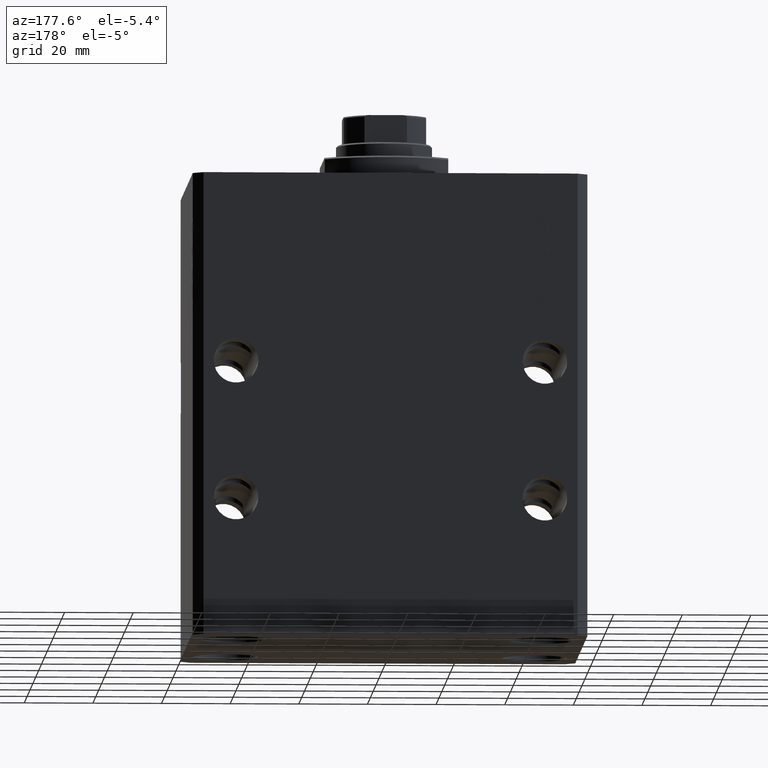
[diagram: clean part render]
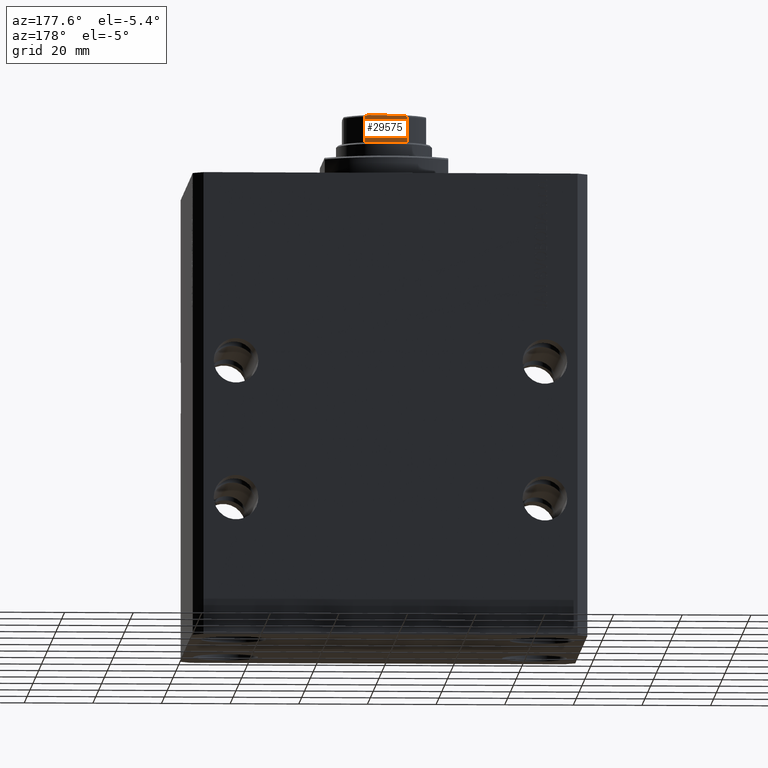
[diagram: same view with one face highlighted and labeled with its STEP entity id]
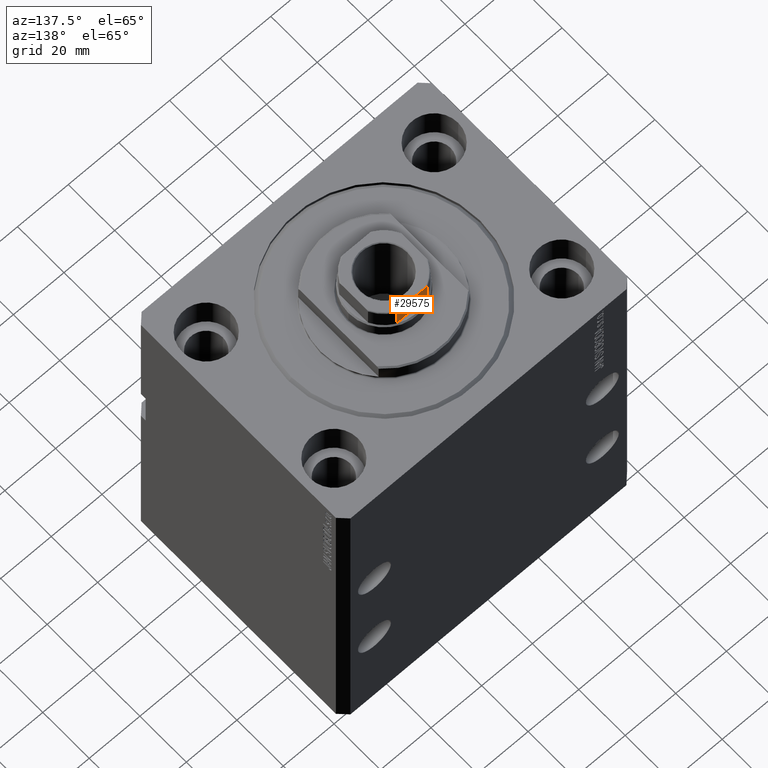
[diagram: same view with one face highlighted and labeled with its STEP entity id]
A machine part, auxiliary view. The second image highlights one B-rep face of the part: STEP entity #29575.
A second angle (auxiliary view) of the same face is appended — the face is thin or edge-on in the first view.
In plain terms, the highlighted planar face has unit normal (0, -1, 0).
Its self-contained STEP definition (entity closure, byte-faithful):
#655 = CARTESIAN_POINT ( 'NONE',  ( -5.000000000000001776, 11.99999999999999822, 137.0999999999999943 ) ) ;
#2593 = VERTEX_POINT ( 'NONE', #28420 ) ;
#3273 = PLANE ( 'NONE',  #22294 ) ;
#3506 = DIRECTION ( 'NONE',  ( 1.000000000000000000, 7.228014483236695816E-17, 0.000000000000000000 ) ) ;
#4063 = DIRECTION ( 'NONE',  ( -0.000000000000000000, -0.000000000000000000, 1.000000000000000000 ) ) ;
#4629 = CARTESIAN_POINT ( 'NONE',  ( -6.184658438426488658, 12.00000000000000000, 136.6589344020394208 ) ) ;
#4857 = CARTESIAN_POINT ( 'NONE',  ( 5.000000000000002665, 12.00000000000000000, 137.0999999999999943 ) ) ;
#5096 = CARTESIAN_POINT ( 'NONE',  ( 6.184658438426492211, 11.99999999999999467, 136.6589821493407158 ) ) ;
#5327 = CARTESIAN_POINT ( 'NONE',  ( 5.459934723612540175, 12.00000000000000000, 137.0794964115812604 ) ) ;
#7032 = DIRECTION ( 'NONE',  ( 7.228014483236695816E-17, -1.000000000000000000, 0.000000000000000000 ) ) ;
#7474 = CARTESIAN_POINT ( 'NONE',  ( -5.230795946637844196, 11.99999999999999467, 137.0999999999999659 ) ) ;
#8160 = CARTESIAN_POINT ( 'NONE',  ( -5.900889097622411761, 12.00000000000000000, 136.9429613869932325 ) ) ;
#8161 = CARTESIAN_POINT ( 'NONE',  ( 5.903192932991098374, 12.00000000000000355, 136.9415152347680475 ) ) ;
#11458 = CARTESIAN_POINT ( 'NONE',  ( -6.046414714222235531, 12.00000000000000000, 136.8457872300292877 ) ) ;
#11920 = CARTESIAN_POINT ( 'NONE',  ( 6.160856115322536297, 11.99999999999999645, 136.7149782197478771 ) ) ;
#13399 = EDGE_CURVE ( 'NONE', #26644, #35152, #22680, .T. ) ;
#14889 = CARTESIAN_POINT ( 'NONE',  ( 6.184658438426492211, 12.00000000000000178, 129.0999999999999659 ) ) ;
#16113 = VECTOR ( 'NONE', #4063, 1000.000000000000000 ) ;
#16913 = EDGE_CURVE ( 'NONE', #25042, #31785, #46231, .T. ) ;
#17023 = CARTESIAN_POINT ( 'NONE',  ( -6.184658438426490434, 12.00000000000000000, -0.001000000000001000089 ) ) ;
#17931 = CARTESIAN_POINT ( 'NONE',  ( 6.184658438426490434, 11.99999999999999822, -0.001000000000001000089 ) ) ;
#19402 = CARTESIAN_POINT ( 'NONE',  ( 6.184658438426490434, 11.99999999999999822, 136.5999999999999943 ) ) ;
#19630 = CARTESIAN_POINT ( 'NONE',  ( 5.793822051191360067, 12.00000000000000355, 136.9841735219943644 ) ) ;
#20858 = CARTESIAN_POINT ( 'NONE',  ( -11.99999999999999822, 11.99999999999999822, 129.0999999999999943 ) ) ;
#21670 = EDGE_CURVE ( 'NONE', #31785, #2593, #35816, .T. ) ;
#21891 = LINE ( 'NONE', #17931, #16113 ) ;
#22294 = AXIS2_PLACEMENT_3D ( 'NONE', #28857, #7032, #3506 ) ;
#22457 = CARTESIAN_POINT ( 'NONE',  ( -5.792513940493511981, 11.99999999999999822, 136.9846382036009516 ) ) ;
#22680 = B_SPLINE_CURVE_WITH_KNOTS ( 'NONE', 3,
 ( #4857, #37268, #5327, #19630, #8161, #26223, #41252, #11920, #5096, #19402 ),
 .UNSPECIFIED., .F., .F.,
 ( 4, 2, 2, 2, 4 ),
 ( 1.734723475976807094E-18, 0.0006877128613558363118, 0.001031569292033764768, 0.001203497507372728020, 0.001375425722711691272 ),
 .UNSPECIFIED. ) ;
#23085 = EDGE_CURVE ( 'NONE', #25042, #35152, #21891, .T. ) ;
#25042 = VERTEX_POINT ( 'NONE', #14889 ) ;
#25279 = ORIENTED_EDGE ( 'NONE', *, *, #23085, .F. ) ;
#26223 = CARTESIAN_POINT ( 'NONE',  ( 6.045866546018590526, 12.00000000000000178, 136.8461068616298917 ) ) ;
#26644 = VERTEX_POINT ( 'NONE', #45982 ) ;
#28420 = CARTESIAN_POINT ( 'NONE',  ( -6.184658438426490434, 12.00000000000000000, 136.5999999999999943 ) ) ;
#28857 = CARTESIAN_POINT ( 'NONE',  ( -11.99999999999999822, 11.99999999999999822, 137.0999999999999943 ) ) ;
#29575 = ADVANCED_FACE ( 'NONE', ( #35214 ), #3273, .F. ) ;
#30645 = ORIENTED_EDGE ( 'NONE', *, *, #13399, .T. ) ;
#31378 = ORIENTED_EDGE ( 'NONE', *, *, #37657, .T. ) ;
#31785 = VERTEX_POINT ( 'NONE', #43003 ) ;
#32112 = CARTESIAN_POINT ( 'NONE',  ( 6.184658438426490434, 11.99999999999999822, 136.5999999999999943 ) ) ;
#32541 = VECTOR ( 'NONE', #45919, 1000.000000000000000 ) ;
#32896 = LINE ( 'NONE', #36655, #41062 ) ;
#33748 = EDGE_CURVE ( 'NONE', #26644, #46363, #32896, .T. ) ;
#34154 = ORIENTED_EDGE ( 'NONE', *, *, #21670, .T. ) ;
#34161 = ORIENTED_EDGE ( 'NONE', *, *, #33748, .F. ) ;
#34233 = CARTESIAN_POINT ( 'NONE',  ( -5.000000000000001776, 11.99999999999999822, 137.0999999999999943 ) ) ;
#35152 = VERTEX_POINT ( 'NONE', #32112 ) ;
#35214 = FACE_OUTER_BOUND ( 'NONE', #46117, .T. ) ;
#35411 = B_SPLINE_CURVE_WITH_KNOTS ( 'NONE', 3,
 ( #39643, #4629, #40092, #36573, #11458, #8160, #22457, #44086, #7474, #655 ),
 .UNSPECIFIED., .F., .F.,
 ( 4, 2, 2, 2, 4 ),
 ( 0.000000000000000000, 0.0001740189231935554155, 0.0003480378463871108309, 0.0006960756927741755832, 0.001392151385548328398 ),
 .UNSPECIFIED. ) ;
#35816 = LINE ( 'NONE', #17023, #32541 ) ;
#36573 = CARTESIAN_POINT ( 'NONE',  ( -6.091003570118824761, 11.99999999999999822, 136.8080862465981511 ) ) ;
#36655 = CARTESIAN_POINT ( 'NONE',  ( -11.99999999999999822, 11.99999999999999822, 137.0999999999999943 ) ) ;
#36885 = DIRECTION ( 'NONE',  ( -1.000000000000000000, -7.228014483236695816E-17, -0.000000000000000000 ) ) ;
#37268 = CARTESIAN_POINT ( 'NONE',  ( 5.230809753656822991, 12.00000000000000000, 137.1000000000000227 ) ) ;
#37657 = EDGE_CURVE ( 'NONE', #2593, #46363, #35411, .T. ) ;
#39643 = CARTESIAN_POINT ( 'NONE',  ( -6.184658438426490434, 12.00000000000000000, 136.5999999999999943 ) ) ;
#40092 = CARTESIAN_POINT ( 'NONE',  ( -6.161088279078727581, 11.99999999999999822, 136.7146234191509677 ) ) ;
#41062 = VECTOR ( 'NONE', #36885, 1000.000000000000000 ) ;
#41252 = CARTESIAN_POINT ( 'NONE',  ( 6.091027642353958882, 12.00000000000000178, 136.8080088155617204 ) ) ;
#42475 = DIRECTION ( 'NONE',  ( -1.000000000000000000, -7.228014483236695816E-17, -0.000000000000000000 ) ) ;
#43003 = CARTESIAN_POINT ( 'NONE',  ( -6.184658438426494875, 12.00000000000000000, 129.0999999999999659 ) ) ;
#43021 = VECTOR ( 'NONE', #42475, 1000.000000000000000 ) ;
#44086 = CARTESIAN_POINT ( 'NONE',  ( -5.458892612163326774, 11.99999999999999822, 137.0796099716497451 ) ) ;
#45919 = DIRECTION ( 'NONE',  ( -0.000000000000000000, -0.000000000000000000, 1.000000000000000000 ) ) ;
#45982 = CARTESIAN_POINT ( 'NONE',  ( 5.000000000000002665, 12.00000000000000000, 137.0999999999999943 ) ) ;
#46117 = EDGE_LOOP ( 'NONE', ( #34161, #30645, #25279, #46397, #34154, #31378 ) ) ;
#46231 = LINE ( 'NONE', #20858, #43021 ) ;
#46363 = VERTEX_POINT ( 'NONE', #34233 ) ;
#46397 = ORIENTED_EDGE ( 'NONE', *, *, #16913, .T. ) ;